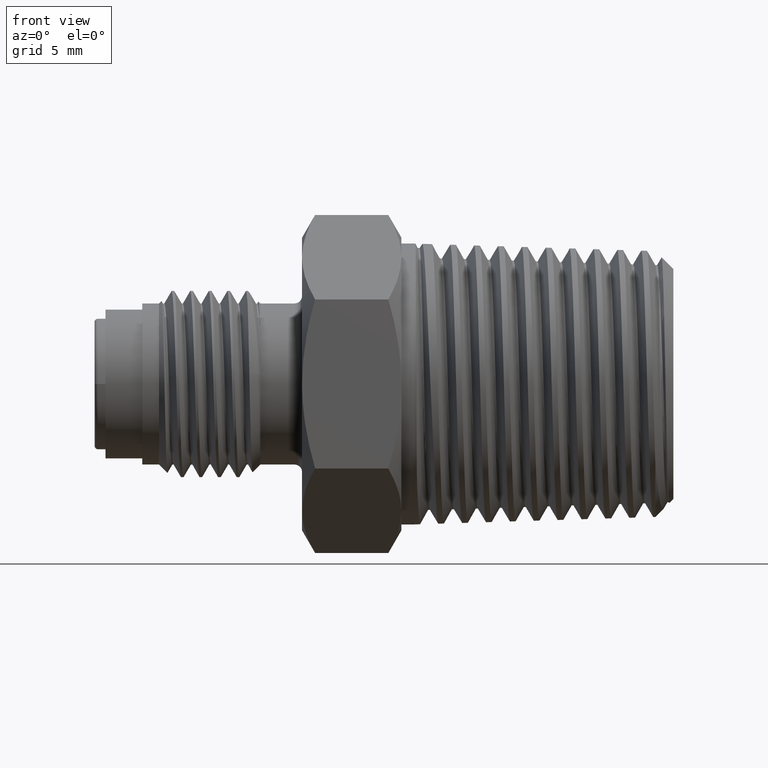
[diagram: clean part render]
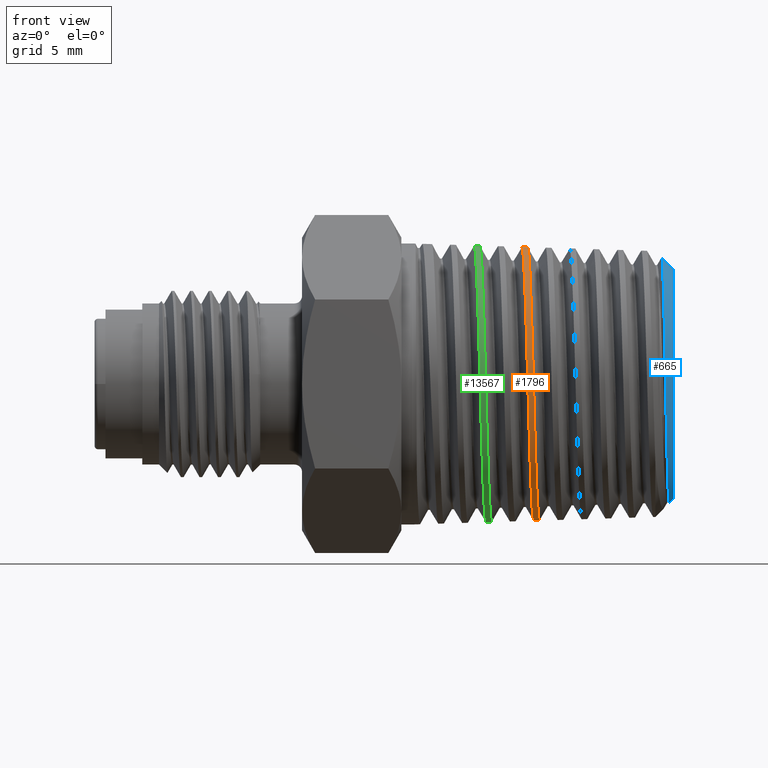
[diagram: same view with three faces highlighted in distinct colors, each labeled with its STEP entity id]
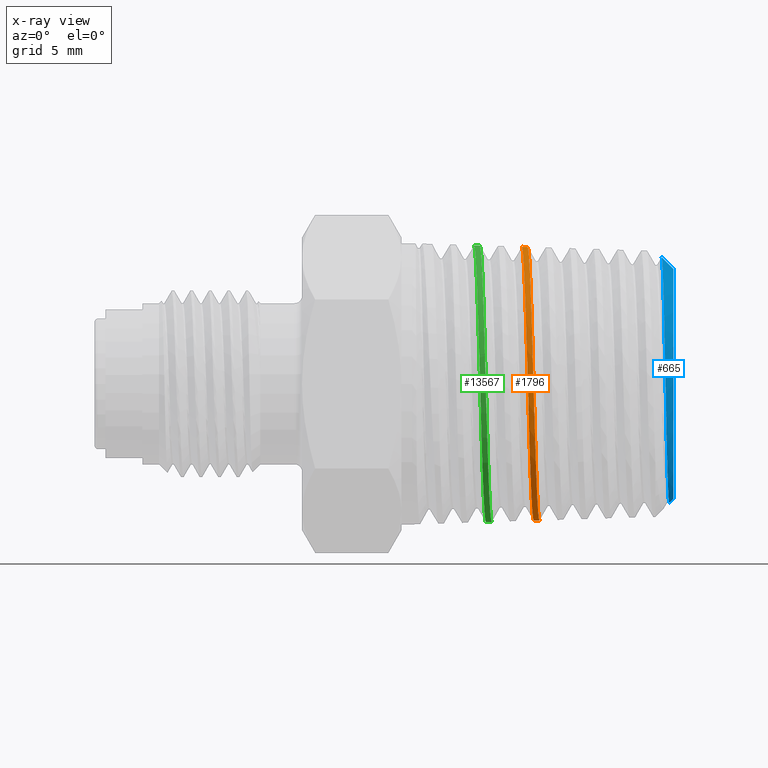
[diagram: x-ray of the same camera — body ghosted, the three highlighted faces saturated]
A machine part, front view with three faces highlighted in distinct colors.
The next image is the same camera in x-ray (body ghosted, the three faces saturated) — at least one of them is partly hidden behind the body in this view.
Their STEP definitions:

[orange] entity #1796 — the highlighted conical surface has half-angle 1.78 deg.
#23 = CARTESIAN_POINT ( 'NONE',  ( -0.4151173090203262861, -0.3950476412712667917, -0.1052743800152869252 ) ) ;
#57 = CARTESIAN_POINT ( 'NONE',  ( -0.4255306256190061198, -0.2700084132593077446, -0.3074180352616404099 ) ) ;
#73 = CARTESIAN_POINT ( 'NONE',  ( -0.4046868152834457444, -0.1565973228919637916, -0.3777680982628089379 ) ) ;
#118 = CARTESIAN_POINT ( 'NONE',  ( -0.4061828962581205404, -0.2043311961957050282, -0.3537887261836558661 ) ) ;
#279 = ORIENTED_EDGE ( 'NONE', *, *, #4064, .T. ) ;
#296 = CARTESIAN_POINT ( 'NONE',  ( -0.4002211051402025377, 6.658879484556641965E-16, -0.4081510494415526158 ) ) ;
#503 = FACE_OUTER_BOUND ( 'NONE', #10501, .T. ) ;
#960 = CARTESIAN_POINT ( 'NONE',  ( -0.4411578052216513224, -0.3545722755929949233, 0.2051525739494097778 ) ) ;
#1097 = CARTESIAN_POINT ( 'NONE',  ( -0.4292409293495632050, -0.3546346083792977777, -0.2043049888906049993 ) ) ;
#1163 = CARTESIAN_POINT ( 'NONE',  ( -0.4031810536658003152, -0.1059078955039125386, -0.3944929306354871268 ) ) ;
#1240 = CARTESIAN_POINT ( 'NONE',  ( -0.4459994229752201611, -0.2384228125006594146, 0.3332910966032992528 ) ) ;
#1377 = CARTESIAN_POINT ( 'NONE',  ( -0.4471260664241781257, -0.2051691929487861610, 0.3555221757829194473 ) ) ;
#1796 = ADVANCED_FACE ( 'NONE', ( #503 ), #5886, .T. ) ;
#1964 = EDGE_CURVE ( 'NONE', #7367, #9366, #4965, .T. ) ;
#2062 = CARTESIAN_POINT ( 'NONE',  ( -0.4206777071998516471, -0.3982452315875983917, 0.09319209145256880655 ) ) ;
#2104 = CARTESIAN_POINT ( 'NONE',  ( -0.4172980396386160029, -0.4087113025977454628, -0.02654738847807768323 ) ) ;
#2135 = CARTESIAN_POINT ( 'NONE',  ( -0.4370630915761624102, -0.4039766048999837156, 0.06713707568260877945 ) ) ;
#2152 = CARTESIAN_POINT ( 'NONE',  ( -0.4099007373253198971, -0.3078022568162522843, -0.2698189548644301383 ) ) ;
#2185 = CARTESIAN_POINT ( 'NONE',  ( -0.4303606442252431719, -0.3730636281242125096, -0.1683877789173131578 ) ) ;
#2201 = CARTESIAN_POINT ( 'NONE',  ( -0.4358929334185339677, -1.461965527859390815E-15, 0.4092596178288875897 ) ) ;
#2234 = CARTESIAN_POINT ( 'NONE',  ( -0.4337078395535592379, -0.4059832034005796952, -0.05286663802153284547 ) ) ;
#2252 = CARTESIAN_POINT ( 'NONE',  ( -0.4343857195080260691, -0.05318785439865186121, 0.4066322226016844121 ) ) ;
#2378 = CARTESIAN_POINT ( 'NONE',  ( -0.4526999193715248171, -0.01342217816118456558, 0.4097819261660839429 ) ) ;
#2759 = CARTESIAN_POINT ( 'NONE',  ( -0.05388810761671526672, 3.876692262546568186E-17, -0.3973881076167147808 ) ) ;
#2840 = AXIS2_PLACEMENT_3D ( 'NONE', #8187, #9241, #3931 ) ;
#3061 = EDGE_CURVE ( 'NONE', #7082, #7367, #7405, .T. ) ;
#3184 = CARTESIAN_POINT ( 'NONE',  ( -0.4259142553729520220, -0.2800625508126857177, -0.2983027516984012584 ) ) ;
#3200 = CARTESIAN_POINT ( 'NONE',  ( -0.4307009927408397276, -0.1806688393055386754, 0.3672862017101528043 ) ) ;
#3252 = CARTESIAN_POINT ( 'NONE',  ( -0.4054366547422275091, -0.1807133018582092465, -0.3663897709488710408 ) ) ;
#3280 = CARTESIAN_POINT ( 'NONE',  ( -0.4322321900415951879, -0.3961281799169543705, -0.1058631473780271143 ) ) ;
#3292 = CARTESIAN_POINT ( 'NONE',  ( -0.4232371862810164198, -0.3672424016114775869, 0.1817208599959760085 ) ) ;
#3323 = CARTESIAN_POINT ( 'NONE',  ( -0.4277797553652128437, -0.3254028222699940076, -0.2492297264315575522 ) ) ;
#3341 = CARTESIAN_POINT ( 'NONE',  ( -0.4239927632673083924, -0.3546800955063869609, 0.2051998295248471660 ) ) ;
#3547 = CARTESIAN_POINT ( 'NONE',  ( -0.4444764421855060266, -0.2799910798022030578, 0.2991596608506715271 ) ) ;
#3744 = CARTESIAN_POINT ( 'NONE',  ( -0.4002211051402025377, 6.658879484556641965E-16, -0.4081510494415526158 ) ) ;
#3863 = LINE ( 'NONE', #5707, #5555 ) ;
#3931 = DIRECTION ( 'NONE',  ( 3.007597545875435086E-16, 0.000000000000000000, 1.000000000000000000 ) ) ;
#4064 = EDGE_CURVE ( 'NONE', #9711, #9366, #3863, .T. ) ;
#4220 = CARTESIAN_POINT ( 'NONE',  ( -0.4332892803866721931, -0.09276110499395887055, 0.3987524209059265523 ) ) ;
#4247 = CARTESIAN_POINT ( 'NONE',  ( -0.4314861919916289645, -0.3883712389185611791, -0.1313843256302555940 ) ) ;
#4261 = CARTESIAN_POINT ( 'NONE',  ( -0.4128481999161832672, -0.3673071923359221835, -0.1808638676731896544 ) ) ;
#4291 = CARTESIAN_POINT ( 'NONE',  ( -0.4288724190660355151, -0.3476949987887125171, -0.2158747826922992608 ) ) ;
#4355 = CARTESIAN_POINT ( 'NONE',  ( -0.4321896561815514182, -0.1314745060069524019, 0.3876758956855913540 ) ) ;
#4470 = CARTESIAN_POINT ( 'NONE',  ( -0.4512003032306483030, -0.06690085532013725911, 0.4044563959714356782 ) ) ;
#4562 = CARTESIAN_POINT ( 'NONE',  ( -0.4493141594662464211, -0.1317422479803758428, 0.3888553786377791921 ) ) ;
#4965 = B_SPLINE_CURVE_WITH_KNOTS ( 'NONE', 3,
 ( #6362, #7536, #5377, #13926, #9663, #9571, #8594, #12944, #9712, #11842, #7488, #57, #3184, #6410, #3323, #4291, #1097, #10652, #2185, #4247, #3280, #7583, #2234, #11749, #5331, #12846, #8547, #2135, #9617, #5470, #6313, #7396, #960, #7806, #7722, #10982, #3547, #9845, #6683, #1240, #1377, #8874, #4562, #13177, #4470, #12074, #11983, #2378, #13086 ),
 .UNSPECIFIED., .F., .F.,
 ( 4, 2, 2, 2, 2, 2, 2, 2, 2, 2, 2, 2, 1, 2, 2, 2, 2, 2, 2, 2, 2, 2, 2, 2, 4 ),
 ( 0.3261832934883643897, 0.3271994410760920013, 0.3282155886638196129, 0.3302478838392748361, 0.3322801790147300038, 0.3332963266024576154, 0.3343124741901852270, 0.3363447693656404502, 0.3373609169533680618, 0.3383770645410956734, 0.3404093597165508966, 0.3414255073042785082, 0.3424416548920060643, 0.3434578024797336759, 0.3444739500674612875, 0.3465062452429165107, 0.3475223928306441223, 0.3485385404183717339, 0.3505708355938269571, 0.3515869831815545687, 0.3526031307692821803, 0.3546354259447373480, 0.3566677211201925712, 0.3576838687079201828, 0.3587000162956477944 ),
 .UNSPECIFIED. ) ;
#5331 = CARTESIAN_POINT ( 'NONE',  ( -0.4351876346310936672, -0.4098868202649014192, 0.0004489687830923733917 ) ) ;
#5377 = CARTESIAN_POINT ( 'NONE',  ( -0.4181132878668119557, -0.02696792992777736347, -0.4080375541647682236 ) ) ;
#5391 = VECTOR ( 'NONE', #8973, 39.37007874015748854 ) ;
#5397 = CARTESIAN_POINT ( 'NONE',  ( -0.4262505928936559663, -0.3072885957187448391, 0.2701915983652530828 ) ) ;
#5441 = CARTESIAN_POINT ( 'NONE',  ( -0.4143659948826278749, -0.3872698742701401464, -0.1309515099415327344 ) ) ;
#5470 = CARTESIAN_POINT ( 'NONE',  ( -0.4388991087519472645, -0.3883117458917903497, 0.1322733670263561145 ) ) ;
#5555 = VECTOR ( 'NONE', #6823, 39.37007874015748854 ) ;
#5707 = CARTESIAN_POINT ( 'NONE',  ( -0.05388810761671503080, -9.899084775737700313E-18, 0.3973881076167150583 ) ) ;
#5886 = CONICAL_SURFACE ( 'NONE', #2840, 0.3973881076167148918, 0.03106686068549926322 ) ;
#6313 = CARTESIAN_POINT ( 'NONE',  ( -0.4400199735455415651, -0.3729967605151558452, 0.1692629121529160841 ) ) ;
#6362 = CARTESIAN_POINT ( 'NONE',  ( -0.4173805624611712783, -8.290667781834677737E-13, -0.4086843114818780598 ) ) ;
#6380 = CARTESIAN_POINT ( 'NONE',  ( -0.4221415577307937594, -0.3826407419338633265, 0.1446005982832854753 ) ) ;
#6410 = CARTESIAN_POINT ( 'NONE',  ( -0.4270559744121703583, -0.3085014216741829296, -0.2698426215536361972 ) ) ;
#6424 = CARTESIAN_POINT ( 'NONE',  ( -0.4314533486925388739, -0.1565666675042784173, 0.3786796167374938960 ) ) ;
#6564 = CARTESIAN_POINT ( 'NONE',  ( -0.4195682529825223717, -0.4060440135173758458, 0.05400284817473446214 ) ) ;
#6683 = CARTESIAN_POINT ( 'NONE',  ( -0.4456192257804850732, -0.2491641349818758955, 0.3253288155686037131 ) ) ;
#6696 = CARTESIAN_POINT ( 'NONE',  ( -0.4028113820413107837, -0.09279532908062605723, -0.3977726849953986399 ) ) ;
#6823 = DIRECTION ( 'NONE',  ( -0.9995174638954169577, -1.836083794277095021E-16, 0.03106186356408789997 ) ) ;
#7082 = VERTEX_POINT ( 'NONE', #3744 ) ;
#7367 = VERTEX_POINT ( 'NONE', #13696 ) ;
#7396 = CARTESIAN_POINT ( 'NONE',  ( -0.4403976701116910641, -0.3672774002474654131, 0.1813754276370080909 ) ) ;
#7405 = LINE ( 'NONE', #2759, #5391 ) ;
#7460 = CARTESIAN_POINT ( 'NONE',  ( -0.4217751704634247756, -0.3872123526799930993, 0.1318381166497889223 ) ) ;
#7488 = CARTESIAN_POINT ( 'NONE',  ( -0.4247790064085354422, -0.2492371937213538891, -0.3244566373910084400 ) ) ;
#7536 = CARTESIAN_POINT ( 'NONE',  ( -0.4177455241160701327, -0.01341205629479883671, -0.4086956533438393935 ) ) ;
#7583 = CARTESIAN_POINT ( 'NONE',  ( -0.4333376124719356959, -0.4040019228339777890, -0.06627171796587046082 ) ) ;
#7599 = CARTESIAN_POINT ( 'NONE',  ( -0.4039310346803816065, -0.1315009551561040768, -0.3867398141813146450 ) ) ;
#7722 = CARTESIAN_POINT ( 'NONE',  ( -0.4426442187630512115, -0.3253147698905501373, 0.2501027812834848985 ) ) ;
#7777 = CARTESIAN_POINT ( 'NONE',  ( -0.4017072085441932283, -0.05319299969363776998, -0.4056104406747687574 ) ) ;
#7806 = CARTESIAN_POINT ( 'NONE',  ( -0.4415377560673523494, -0.3476211503061026886, 0.2167384625914776930 ) ) ;
#8187 = CARTESIAN_POINT ( 'NONE',  ( -0.05388810761671514876, -9.899084775737700313E-18, 1.198591983551632204E-16 ) ) ;
#8519 = CARTESIAN_POINT ( 'NONE',  ( -0.4188012055079914364, -0.4086984068610218235, 0.02744975718514625074 ) ) ;
#8547 = CARTESIAN_POINT ( 'NONE',  ( -0.4366884842940610967, -0.4059610652791116325, 0.05374485791712335647 ) ) ;
#8564 = CARTESIAN_POINT ( 'NONE',  ( -0.4329225685662143053, -0.1058805581035311971, 0.3954568138429749302 ) ) ;
#8594 = CARTESIAN_POINT ( 'NONE',  ( -0.4211041390130308981, -0.1317332353187808114, -0.3879365333853609932 ) ) ;
#8610 = CARTESIAN_POINT ( 'NONE',  ( -0.4295576909417417877, -0.2158788499176555742, 0.3477202774176272326 ) ) ;
#8658 = ORIENTED_EDGE ( 'NONE', *, *, #1964, .F. ) ;
#8874 = CARTESIAN_POINT ( 'NONE',  ( -0.4478349983029111803, -0.1816362618977995780, 0.3681509637322509243 ) ) ;
#8973 = DIRECTION ( 'NONE',  ( -0.9995174638954169577, -1.798043982487783698E-16, -0.03106186356408728935 ) ) ;
#9241 = DIRECTION ( 'NONE',  ( -1.000000000000000000, -1.836970198721021306E-16, 3.053134055134053237E-16 ) ) ;
#9366 = VERTEX_POINT ( 'NONE', #11262 ) ;
#9538 = CARTESIAN_POINT ( 'NONE',  ( -0.4154871841803190469, -0.3982821520397017978, -0.09232259867756230365 ) ) ;
#9571 = CARTESIAN_POINT ( 'NONE',  ( -0.4203337409509989020, -0.1061530642330468371, -0.3956518014588456533 ) ) ;
#9586 = CARTESIAN_POINT ( 'NONE',  ( -0.4165850258997766953, -0.4060649681861628335, -0.05313508760648447127 ) ) ;
#9617 = CARTESIAN_POINT ( 'NONE',  ( -0.4381720014689587939, -0.3960819141448851388, 0.1067504613263535324 ) ) ;
#9632 = CARTESIAN_POINT ( 'NONE',  ( -0.4076640810894440747, -0.2494724653300586792, -0.3244407925232800083 ) ) ;
#9663 = CARTESIAN_POINT ( 'NONE',  ( -0.4192170904417025223, -0.06692482261865570492, -0.4034455612203098340 ) ) ;
#9685 = CARTESIAN_POINT ( 'NONE',  ( -0.4255029801079732721, -0.3243880360349389869, 0.2493655557517978072 ) ) ;
#9711 = VERTEX_POINT ( 'NONE', #12886 ) ;
#9712 = CARTESIAN_POINT ( 'NONE',  ( -0.4233151625336624702, -0.2052392936973124749, -0.3546285848175370070 ) ) ;
#9725 = CARTESIAN_POINT ( 'NONE',  ( -0.4139831723461704360, -0.3827023022179728562, -0.1437190520059273557 ) ) ;
#9828 = B_SPLINE_CURVE_WITH_KNOTS ( 'NONE', 3,
 ( #2201, #10717, #2252, #4220, #8564, #4355, #6424, #3200, #11857, #8610, #12818, #13004, #11812, #5397, #9685, #12908, #3341, #3292, #6380, #7460, #10768, #2062, #6564, #8519, #2104, #9586, #9538, #23, #5441, #9725, #4261, #11764, #12863, #2152, #12963, #9632, #10814, #118, #3252, #73, #7599, #1163, #6696, #7777, #9907, #296 ),
 .UNSPECIFIED., .F., .F.,
 ( 4, 2, 2, 1, 2, 2, 2, 2, 2, 2, 2, 2, 2, 2, 2, 2, 2, 2, 2, 2, 1, 2, 2, 4 ),
 ( 0.3508915985693499828, 0.3529225975705073681, 0.3539380970710860885, 0.3549535965716647534, 0.3559690960722434738, 0.3569845955728221942, 0.3590155945739795795, 0.3600310940745582444, 0.3610465935751369648, 0.3630775925762943501, 0.3640930920768730705, 0.3651085915774517354, 0.3671395905786091207, 0.3691705895797665060, 0.3701860890803452264, 0.3712015885809238913, 0.3732325875820813321, 0.3752635865832387174, 0.3772945855843961027, 0.3783100850849747676, 0.3793255845855534880, 0.3803410840861321529, 0.3813565835867108733, 0.3833875825878682586 ),
 .UNSPECIFIED. ) ;
#9845 = CARTESIAN_POINT ( 'NONE',  ( -0.4448579812614698592, -0.2699438754271665242, 0.3082734678755493785 ) ) ;
#9907 = CARTESIAN_POINT ( 'NONE',  ( -0.4009748475236976639, -0.02666003470367707059, -0.4081744733875310449 ) ) ;
#10012 = ORIENTED_EDGE ( 'NONE', *, *, #3061, .F. ) ;
#10501 = EDGE_LOOP ( 'NONE', ( #10012, #11928, #279, #8658 ) ) ;
#10652 = CARTESIAN_POINT ( 'NONE',  ( -0.4299866881605030611, -0.3673447159500730641, -0.1805077683558163060 ) ) ;
#10717 = CARTESIAN_POINT ( 'NONE',  ( -0.4351349525256630879, -0.02666336185395930258, 0.4092360621633498452 ) ) ;
#10768 = CARTESIAN_POINT ( 'NONE',  ( -0.4210436925854528778, -0.3950048111736352285, 0.1061475768677916515 ) ) ;
#10814 = CARTESIAN_POINT ( 'NONE',  ( -0.4065562753110957273, -0.2159531710668891324, -0.3468325317491726678 ) ) ;
#10982 = CARTESIAN_POINT ( 'NONE',  ( -0.4433570791194375027, -0.3084107551757278021, 0.2707116753168833934 ) ) ;
#11262 = CARTESIAN_POINT ( 'NONE',  ( -0.4530636790355601629, -9.000062543845689587E-13, 0.4097932306740008634 ) ) ;
#11749 = CARTESIAN_POINT ( 'NONE',  ( -0.4344465616358256788, -0.4085941926608872010, -0.02620719120629625212 ) ) ;
#11764 = CARTESIAN_POINT ( 'NONE',  ( -0.4121257072442661151, -0.3547466435279175156, -0.2043472604246309166 ) ) ;
#11765 = EDGE_CURVE ( 'NONE', #9711, #7082, #9828, .T. ) ;
#11812 = CARTESIAN_POINT ( 'NONE',  ( -0.4266174901114819784, -0.2982909140444289786, 0.2801034019368653927 ) ) ;
#11842 = CARTESIAN_POINT ( 'NONE',  ( -0.4244098710663518625, -0.2384974029909860127, -0.3324126873204917287 ) ) ;
#11857 = CARTESIAN_POINT ( 'NONE',  ( -0.4299423048193632413, -0.2042687298115228867, 0.3546764425475662508 ) ) ;
#11928 = ORIENTED_EDGE ( 'NONE', *, *, #11765, .F. ) ;
#11983 = CARTESIAN_POINT ( 'NONE',  ( -0.4523314285093892329, -0.02697911557056325779, 0.4091015856932315731 ) ) ;
#12074 = CARTESIAN_POINT ( 'NONE',  ( -0.4515801459302529741, -0.05368957088628988766, 0.4064360667830548279 ) ) ;
#12818 = CARTESIAN_POINT ( 'NONE',  ( -0.4284240115046857311, -0.2494077663607741357, 0.3253033179052573498 ) ) ;
#12846 = CARTESIAN_POINT ( 'NONE',  ( -0.4359382687774327469, -0.4085822840720616522, 0.02709851602701950427 ) ) ;
#12863 = CARTESIAN_POINT ( 'NONE',  ( -0.4106585558583237816, -0.3250777201910631797, -0.2487774291701435048 ) ) ;
#12886 = CARTESIAN_POINT ( 'NONE',  ( -0.4358929334185339677, -1.461965527859390815E-15, 0.4092596178288875897 ) ) ;
#12908 = CARTESIAN_POINT ( 'NONE',  ( -0.4251252121022479624, -0.3324166754126312573, 0.2385315920400868095 ) ) ;
#12944 = CARTESIAN_POINT ( 'NONE',  ( -0.4226059700230813676, -0.1816924019193266182, -0.3672525448130582459 ) ) ;
#12963 = CARTESIAN_POINT ( 'NONE',  ( -0.4083974791737836063, -0.2700614682328572602, -0.3075274627517169401 ) ) ;
#13004 = CARTESIAN_POINT ( 'NONE',  ( -0.4277088157743872965, -0.2699955278200746323, 0.3083811963374153975 ) ) ;
#13086 = CARTESIAN_POINT ( 'NONE',  ( -0.4530636790355601629, -9.000062543845689587E-13, 0.4097932306740008634 ) ) ;
#13177 = CARTESIAN_POINT ( 'NONE',  ( -0.4500643474404105726, -0.1061122906736391702, 0.3966168838886282577 ) ) ;
#13696 = CARTESIAN_POINT ( 'NONE',  ( -0.4173805624611712783, -8.290667781834677737E-13, -0.4086843114818780598 ) ) ;
#13926 = CARTESIAN_POINT ( 'NONE',  ( -0.4188485369815475590, -0.05370431114283505392, -0.4054089782269740816 ) ) ;

[blue] entity #665 — the highlighted conical surface has half-angle 45 deg.
#114 = CARTESIAN_POINT ( 'NONE',  ( -0.03419360974519185942, -0.04783806250581935232, 0.3754185174036220318 ) ) ;
#293 = CARTESIAN_POINT ( 'NONE',  ( -0.02358777957136104497, -0.3672739134293080965, -0.002737659937162336809 ) ) ;
#493 = CARTESIAN_POINT ( 'NONE',  ( -1.390232547146580598E-16, 4.041677008808863499E-17, -0.3434999999999999720 ) ) ;
#665 = ADVANCED_FACE ( 'NONE', ( #13123 ), #4683, .T. ) ;
#834 = CARTESIAN_POINT ( 'NONE',  ( -0.03512519437966415969, -1.088470684975604861E-16, 0.3786251943796643538 ) ) ;
#1110 = CARTESIAN_POINT ( 'NONE',  ( -0.01211113930622502270, -3.628235616585349741E-17, -0.3556111393062247328 ) ) ;
#1297 = CARTESIAN_POINT ( 'NONE',  ( -0.01899119275345150654, -0.2923499103164680091, -0.2146538087162919439 ) ) ;
#1315 = AXIS2_PLACEMENT_3D ( 'NONE', #9939, #1337, #4383 ) ;
#1335 = DIRECTION ( 'NONE',  ( -0.7071067811865489050, -1.298934084353236847E-16, 0.7071067811865460184 ) ) ;
#1337 = DIRECTION ( 'NONE',  ( -1.000000000000000000, -1.836970198721021306E-16, 3.053134055134053237E-16 ) ) ;
#1375 = CARTESIAN_POINT ( 'NONE',  ( 7.072705487305145467E-17, -3.791200677927629740E-33, 0.3435000000000001941 ) ) ;
#1387 = CARTESIAN_POINT ( 'NONE',  ( -0.02429370478789626142, -0.3670703041803906053, 0.03329171816586384142 ) ) ;
#1910 = CARTESIAN_POINT ( 'NONE',  ( -0.01607700144644064882, -0.1847160451679542570, -0.3094369673651253261 ) ) ;
#2291 = CARTESIAN_POINT ( 'NONE',  ( -0.03279723390539178440, -0.1180783803798975407, 0.3580945321481132648 ) ) ;
#2342 = CARTESIAN_POINT ( 'NONE',  ( -0.03512519437966415969, -1.088470684975604861E-16, 0.3786251943796643538 ) ) ;
#2388 = CARTESIAN_POINT ( 'NONE',  ( -0.02475454984800988176, -0.3645968998341773126, 0.05708654945727791030 ) ) ;
#2475 = CARTESIAN_POINT ( 'NONE',  ( -0.01849258189419814014, -0.2770753932544420817, -0.2332653395469663216 ) ) ;
#2536 = VECTOR ( 'NONE', #1335, 39.37007874015748854 ) ;
#3180 = EDGE_LOOP ( 'NONE', ( #11944, #3995, #11049, #7719 ) ) ;
#3232 = CARTESIAN_POINT ( 'NONE',  ( 7.072705487305150398E-17, -4.949542387868817801E-18, 0.3435000000000002496 ) ) ;
#3237 = EDGE_CURVE ( 'NONE', #3277, #8589, #12956, .T. ) ;
#3242 = CARTESIAN_POINT ( 'NONE',  ( -0.01211113930622502270, -3.628235616585349741E-17, -0.3556111393062247328 ) ) ;
#3277 = VERTEX_POINT ( 'NONE', #3232 ) ;
#3423 = EDGE_CURVE ( 'NONE', #3277, #9002, #12446, .T. ) ;
#3428 = CARTESIAN_POINT ( 'NONE',  ( -0.01923992981405643274, -0.2994820882326992284, -0.2050214142092643410 ) ) ;
#3515 = CARTESIAN_POINT ( 'NONE',  ( -0.02644544553048674973, -0.3432164037529540912, 0.1385831109771513692 ) ) ;
#3557 = CARTESIAN_POINT ( 'NONE',  ( -0.02761580199319609366, -0.3180199537231628293, 0.1928132338990157513 ) ) ;
#3950 = EDGE_CURVE ( 'NONE', #7336, #9002, #7041, .T. ) ;
#3995 = ORIENTED_EDGE ( 'NONE', *, *, #3237, .F. ) ;
#4029 = CARTESIAN_POINT ( 'NONE',  ( -0.01456676493606821020, -0.1185803539847597177, -0.3387105415750105153 ) ) ;
#4078 = CARTESIAN_POINT ( 'NONE',  ( -0.01750409661862231334, -0.2432759768433249425, -0.2678089026922997884 ) ) ;
#4383 = DIRECTION ( 'NONE',  ( 3.053134055134053237E-16, 0.000000000000000000, 1.000000000000000000 ) ) ;
#4399 = CARTESIAN_POINT ( 'NONE',  ( -0.01972969881531517686, -0.3127497859596533591, -0.1851119398059835053 ) ) ;
#4437 = CARTESIAN_POINT ( 'NONE',  ( -0.02285675826322147719, -0.3644819036006793356, -0.03894051188005553943 ) ) ;
#4482 = CARTESIAN_POINT ( 'NONE',  ( -0.03327123482740284438, -0.09476093140823768635, 0.3654476841676525534 ) ) ;
#4528 = CARTESIAN_POINT ( 'NONE',  ( -0.02068073293829968823, -0.3352973701859064959, -0.1426520193521481905 ) ) ;
#4683 = CONICAL_SURFACE ( 'NONE', #1315, 0.3435000000000000275, 0.7853981633974459475 ) ;
#4730 = CARTESIAN_POINT ( 'NONE',  ( -1.390232547146580105E-16, 4.206661755071158813E-17, -0.3434999999999999165 ) ) ;
#5095 = CARTESIAN_POINT ( 'NONE',  ( -0.01556815175686542332, -0.1630529046892643941, -0.3208083712310065283 ) ) ;
#5344 = CARTESIAN_POINT ( 'NONE',  ( -0.01824152245424437435, -0.2688875118357977878, -0.2422842296147093011 ) ) ;
#5481 = CARTESIAN_POINT ( 'NONE',  ( -0.02903388688421468244, -0.2757481800422773577, 0.2516278410519126596 ) ) ;
#5530 = CARTESIAN_POINT ( 'NONE',  ( -0.02571421457266091087, -0.3544003049345348377, 0.1042356597554801034 ) ) ;
#6560 = CARTESIAN_POINT ( 'NONE',  ( -0.02260981688051546049, -0.3627610161203256856, -0.05083532838454456193 ) ) ;
#6644 = CARTESIAN_POINT ( 'NONE',  ( -0.02547055319570158335, -0.3574046847516837433, 0.09244322823527631461 ) ) ;
#7041 = B_SPLINE_CURVE_WITH_KNOTS ( 'NONE', 3,
 ( #1110, #10465, #10811, #13700, #8608, #8291, #4029, #5095, #1910, #9389, #4078, #5344, #2475, #1297, #3428, #4399, #10949, #13002, #4528, #9904, #11904, #6560, #4437, #13097, #293, #1387, #2388, #6644, #5530, #8837, #3515, #9949, #3557, #13047, #5481, #7774, #8792, #7734, #10904, #9860, #7814, #2291, #4482, #114, #7639, #2342 ),
 .UNSPECIFIED., .F., .F.,
 ( 4, 2, 2, 2, 2, 2, 2, 2, 2, 2, 2, 2, 2, 2, 2, 2, 2, 2, 2, 2, 2, 2, 4 ),
 ( 0.001417107997962201073, 0.002328821662134032081, 0.003240535326305863089, 0.005063962654649525538, 0.006887389982993189289, 0.008710817311336851304, 0.009622530975508681444, 0.01053424463968051158, 0.01144595830385234173, 0.01235767196802417187, 0.01418109929636783388, 0.01509281296053966576, 0.01600452662471149590, 0.01782795395305515618, 0.01873966761722698285, 0.01965138128139881646, 0.02147480860974248021, 0.02329823593808614396, 0.02420994960225797757, 0.02512166326642981118, 0.02694509059477347840, 0.02876851792311714562, 0.03059194525146081631 ),
 .UNSPECIFIED. ) ;
#7330 = AXIS2_PLACEMENT_3D ( 'NONE', #7391, #11649, #7343 ) ;
#7336 = VERTEX_POINT ( 'NONE', #3242 ) ;
#7343 = DIRECTION ( 'NONE',  ( -3.053134055134053237E-16, 0.000000000000000000, -1.000000000000000000 ) ) ;
#7391 = CARTESIAN_POINT ( 'NONE',  ( -3.414809992080329023E-17, -3.791200677927629740E-33, 1.034064367020310434E-16 ) ) ;
#7639 = CARTESIAN_POINT ( 'NONE',  ( -0.03465400410636681333, -0.02407213564392436667, 0.3781540041063669033 ) ) ;
#7719 = ORIENTED_EDGE ( 'NONE', *, *, #3950, .F. ) ;
#7734 = CARTESIAN_POINT ( 'NONE',  ( -0.03045449983030099408, -0.2229824567993893281, 0.3004424684545072277 ) ) ;
#7774 = CARTESIAN_POINT ( 'NONE',  ( -0.02974811654509642092, -0.2504107477099718482, 0.2770408760702980366 ) ) ;
#7814 = CARTESIAN_POINT ( 'NONE',  ( -0.03185421142103731645, -0.1622100645970761257, 0.3393424061292485416 ) ) ;
#8291 = CARTESIAN_POINT ( 'NONE',  ( -0.01407514431193268058, -0.09558284686578150113, -0.3454104905721055996 ) ) ;
#8363 = EDGE_CURVE ( 'NONE', #8589, #7336, #9599, .T. ) ;
#8589 = VERTEX_POINT ( 'NONE', #493 ) ;
#8608 = CARTESIAN_POINT ( 'NONE',  ( -0.01334204556327048957, -0.05991135985831561039, -0.3519843752034159112 ) ) ;
#8792 = CARTESIAN_POINT ( 'NONE',  ( -0.02998537134419538772, -0.2415505413398298662, 0.2851132117853276693 ) ) ;
#8837 = CARTESIAN_POINT ( 'NONE',  ( -0.02620091870528735295, -0.3473028487875529646, 0.1272989127032440326 ) ) ;
#8933 = VECTOR ( 'NONE', #8952, 39.37007874015748854 ) ;
#8952 = DIRECTION ( 'NONE',  ( -0.7071067811865493491, -4.329780281177457185E-17, -0.7071067811865455743 ) ) ;
#9002 = VERTEX_POINT ( 'NONE', #834 ) ;
#9389 = CARTESIAN_POINT ( 'NONE',  ( -0.01703268559334514959, -0.2247326387653454938, -0.2829393797266763766 ) ) ;
#9599 = LINE ( 'NONE', #4730, #8933 ) ;
#9860 = CARTESIAN_POINT ( 'NONE',  ( -0.03138900916615241371, -0.1832462770039146593, 0.3279379678549967925 ) ) ;
#9904 = CARTESIAN_POINT ( 'NONE',  ( -0.02139673688824782899, -0.3490555179990891266, -0.1090648856758779789 ) ) ;
#9939 = CARTESIAN_POINT ( 'NONE',  ( -3.414809992080329023E-17, -3.791200677927629740E-33, 1.034064367020310434E-16 ) ) ;
#9949 = CARTESIAN_POINT ( 'NONE',  ( -0.02715882920224206576, -0.3293614588001615440, 0.1717020100653172676 ) ) ;
#10465 = CARTESIAN_POINT ( 'NONE',  ( -0.01236174397809632931, -0.01196023176803675918, -0.3558617439780960567 ) ) ;
#10811 = CARTESIAN_POINT ( 'NONE',  ( -0.01261098181138223424, -0.02392644092555306842, -0.3555091674881570296 ) ) ;
#10904 = CARTESIAN_POINT ( 'NONE',  ( -0.03068932451743494258, -0.2132259073977509911, 0.3077296669123570916 ) ) ;
#10949 = CARTESIAN_POINT ( 'NONE',  ( -0.01996888701856504300, -0.3188837585305799860, -0.1748338147034825540 ) ) ;
#11049 = ORIENTED_EDGE ( 'NONE', *, *, #3423, .T. ) ;
#11649 = DIRECTION ( 'NONE',  ( 1.000000000000000000, 1.836970198721021306E-16, -3.053134055134053237E-16 ) ) ;
#11904 = CARTESIAN_POINT ( 'NONE',  ( -0.02187584599326587720, -0.3558921807483807487, -0.08610350844641009860 ) ) ;
#11944 = ORIENTED_EDGE ( 'NONE', *, *, #8363, .F. ) ;
#12446 = LINE ( 'NONE', #1375, #2536 ) ;
#12956 = CIRCLE ( 'NONE', #7330, 0.3435000000000000830 ) ;
#13002 = CARTESIAN_POINT ( 'NONE',  ( -0.02044344396260606989, -0.3301474415824712239, -0.1536280560566913866 ) ) ;
#13047 = CARTESIAN_POINT ( 'NONE',  ( -0.02855955446216885268, -0.2910333308267760155, 0.2330549464355692046 ) ) ;
#13097 = CARTESIAN_POINT ( 'NONE',  ( -0.02334832749227702328, -0.3667463959397789242, -0.01486350032068658317 ) ) ;
#13123 = FACE_OUTER_BOUND ( 'NONE', #3180, .T. ) ;
#13700 = CARTESIAN_POINT ( 'NONE',  ( -0.01310024914008910135, -0.04787115782334613184, -0.3535764433785794636 ) ) ;

[green] entity #13567 — the highlighted conical surface has half-angle 1.78 deg.
#66 = CARTESIAN_POINT ( 'NONE',  ( -0.5548783236352448078, -0.3579938740437071942, -0.2062929351198081462 ) ) ;
#107 = CARTESIAN_POINT ( 'NONE',  ( -0.5544994697024211439, -0.3510678085506656054, -0.2178451089479802039 ) ) ;
#127 = ORIENTED_EDGE ( 'NONE', *, *, #5388, .F. ) ;
#161 = CARTESIAN_POINT ( 'NONE',  ( -0.5533734951500435262, -0.3280997641429498901, -0.2510551256563552935 ) ) ;
#207 = CARTESIAN_POINT ( 'NONE',  ( -0.5429719767385962070, 3.569543569846468997E-16, -0.4125872981889862623 ) ) ;
#407 = CARTESIAN_POINT ( 'NONE',  ( -0.5753578998133608291, -0.4031084738813348611, -0.09352716488975297560 ) ) ;
#783 = CARTESIAN_POINT ( 'NONE',  ( -0.5600763267644163212, 1.212415482150650260E-12, -0.4131188476676551646 ) ) ;
#969 = CARTESIAN_POINT ( 'NONE',  ( -0.5772270310802870563, -0.05392883738896284140, 0.4110074407666416962 ) ) ;
#1040 = B_SPLINE_CURVE_WITH_KNOTS ( 'NONE', 3,
 ( #12717, #2007, #969, #12899, #1064, #8464, #3141, #6641, #2288, #9803, #6600, #12999, #2385, #3463, #9901, #10988, #6556, #3508, #1291, #8748, #1249, #11899, #5573, #6690, #9720, #11946, #6503, #11853, #9764, #66, #107, #1205, #161, #3424, #13045, #7636, #13091, #5435, #8648, #3381, #8830, #10807, #12954, #7592, #13139, #1155, #3332, #207 ),
 .UNSPECIFIED., .F., .F.,
 ( 4, 2, 2, 2, 2, 2, 2, 2, 2, 2, 2, 2, 2, 2, 2, 2, 2, 2, 2, 2, 2, 2, 2, 4 ),
 ( 0.2200360876438989532, 0.2220891338086347921, 0.2241421799733706033, 0.2261952261381064422, 0.2272217492204743616, 0.2282482723028422811, 0.2303013184675781200, 0.2323543646323139311, 0.2333808877146818506, 0.2344074107970497700, 0.2364604569617856089, 0.2374869800441535284, 0.2385135031265214201, 0.2405665492912572589, 0.2415930723736251784, 0.2426195954559930978, 0.2436461185383610173, 0.2446726416207289367, 0.2467256877854647479, 0.2477522108678326673, 0.2487787339502005868, 0.2508317801149363979, 0.2518583031973043451, 0.2528848262796722368 ),
 .UNSPECIFIED. ) ;
#1064 = CARTESIAN_POINT ( 'NONE',  ( -0.5749706661414076825, -0.1331735245969423997, 0.3924829851553595095 ) ) ;
#1155 = CARTESIAN_POINT ( 'NONE',  ( -0.5437302623999008544, -0.02693856556750424264, -0.4119537495933845994 ) ) ;
#1205 = CARTESIAN_POINT ( 'NONE',  ( -0.5537464475807963860, -0.3361207441477042090, -0.2402261777009080113 ) ) ;
#1249 = CARTESIAN_POINT ( 'NONE',  ( -0.5616096487467493459, -0.4131238666757211520, 0.02766741612657168045 ) ) ;
#1291 = CARTESIAN_POINT ( 'NONE',  ( -0.5634438998000564913, -0.4025556291417743959, 0.09426412208967943629 ) ) ;
#1410 = CARTESIAN_POINT ( 'NONE',  ( -0.5660552836382625186, -0.2071326861889213333, -0.3586806603042343444 ) ) ;
#1451 = CARTESIAN_POINT ( 'NONE',  ( -0.5630429360994172461, -0.1069180233103600580, -0.3993716813438397684 ) ) ;
#1537 = DIRECTION ( 'NONE',  ( 3.007597545875435086E-16, 0.000000000000000000, 1.000000000000000000 ) ) ;
#1545 = CARTESIAN_POINT ( 'NONE',  ( -0.5853687094682890057, -0.3284419927248698468, 0.2522422884868726345 ) ) ;
#1627 = CARTESIAN_POINT ( 'NONE',  ( -0.05388810761671514876, -9.899084775737700313E-18, 1.198591983551632204E-16 ) ) ;
#1891 = DIRECTION ( 'NONE',  ( -0.9995174638954169577, -1.836083794277095021E-16, 0.03106186356408789997 ) ) ;
#1988 = CARTESIAN_POINT ( 'NONE',  ( -0.05388810761671503080, -9.899084775737700313E-18, 0.3973881076167150583 ) ) ;
#2007 = CARTESIAN_POINT ( 'NONE',  ( -0.5779471035671341905, -0.02713578471442852288, 0.4136742152834120834 ) ) ;
#2288 = CARTESIAN_POINT ( 'NONE',  ( -0.5712745675139552226, -0.2516095138026603339, 0.3283763999993780658 ) ) ;
#2368 = CARTESIAN_POINT ( 'NONE',  ( -0.5783214541365971906, -0.4136778913323057028, 0.01375826318332451330 ) ) ;
#2385 = CARTESIAN_POINT ( 'NONE',  ( -0.5683059790174219694, -0.3282967815462508598, 0.2526717951102723791 ) ) ;
#2501 = CARTESIAN_POINT ( 'NONE',  ( -0.5675221031444402930, -0.2519844080532380182, -0.3279433663134428412 ) ) ;
#2577 = DIRECTION ( 'NONE',  ( -1.000000000000000000, -1.836970198721021306E-16, 3.053134055134053237E-16 ) ) ;
#2588 = CARTESIAN_POINT ( 'NONE',  ( -0.5920584169725240375, -0.1332386586003315443, 0.3930255124007953627 ) ) ;
#2634 = CARTESIAN_POINT ( 'NONE',  ( -0.5898257721866865255, -0.2071120826140678550, 0.3587785218807038601 ) ) ;
#3030 = CARTESIAN_POINT ( 'NONE',  ( -0.5429719767385962070, 3.569543569846468997E-16, -0.4125872981889862623 ) ) ;
#3141 = CARTESIAN_POINT ( 'NONE',  ( -0.5727734938837097944, -0.2067761669207261177, 0.3591269722498973693 ) ) ;
#3332 = CARTESIAN_POINT ( 'NONE',  ( -0.5433480649784664385, -0.01346087149659764941, -0.4125989858302899216 ) ) ;
#3381 = CARTESIAN_POINT ( 'NONE',  ( -0.5481668302737754406, -0.1828437119750551676, -0.3702909609151350256 ) ) ;
#3424 = CARTESIAN_POINT ( 'NONE',  ( -0.5526370737635301067, -0.3109453618551623055, -0.2719783343387814356 ) ) ;
#3450 = CARTESIAN_POINT ( 'NONE',  ( -0.5765024606054346412, -0.4110359873485743276, -0.05361490033504351382 ) ) ;
#3463 = CARTESIAN_POINT ( 'NONE',  ( -0.5668157285909563026, -0.3585985802621782237, 0.2073417095941710864 ) ) ;
#3489 = CARTESIAN_POINT ( 'NONE',  ( -0.5831845093815120062, -0.3711582220907217455, 0.1835377663434343831 ) ) ;
#3508 = CARTESIAN_POINT ( 'NONE',  ( -0.5638072723853709833, -0.3992254793488653752, 0.1075470537666837895 ) ) ;
#3544 = CARTESIAN_POINT ( 'NONE',  ( -0.5957555899095653418, 1.814117808292674439E-16, 0.4142276471073000343 ) ) ;
#3579 = CARTESIAN_POINT ( 'NONE',  ( -0.5686309197645633695, -0.2830011015417226439, -0.3016272364765018033 ) ) ;
#3621 = CARTESIAN_POINT ( 'NONE',  ( -0.5738402538035413114, -0.3873263199026694692, -0.1455360861050426780 ) ) ;
#3758 = CARTESIAN_POINT ( 'NONE',  ( -0.5894641308002058766, -0.2187168659235648183, 0.3518060742244161765 ) ) ;
#4509 = CARTESIAN_POINT ( 'NONE',  ( -0.5809306438860856181, -0.4004300740930459845, 0.1076458234948892145 ) ) ;
#4552 = CARTESIAN_POINT ( 'NONE',  ( -0.5846336164697101268, -0.3444988276688073503, 0.2305702288246599674 ) ) ;
#4776 = B_SPLINE_CURVE_WITH_KNOTS ( 'NONE', 3,
 ( #5689, #11060, #8863, #7883, #1451, #13167, #6761, #7839, #1410, #6671, #2501, #9971, #3579, #5733, #13251, #13121, #7929, #3621, #11104, #12198, #407, #3450, #8774, #2368, #9834, #10927, #8813, #4509, #9885, #12016, #3489, #10972, #4552, #1545, #10149, #11331, #12445, #13430, #3758, #2634, #5960, #5816, #2588, #8069, #11286, #4917, #6894, #8024, #13521 ),
 .UNSPECIFIED., .F., .F.,
 ( 4, 2, 2, 2, 2, 2, 2, 2, 2, 2, 2, 2, 2, 2, 2, 2, 1, 2, 2, 2, 2, 2, 2, 2, 4 ),
 ( 0.4568023524688478165, 0.4588572693222879306, 0.4598847277490079599, 0.4609121861757279892, 0.4629671030291681033, 0.4639945614558881881, 0.4650220198826082174, 0.4670769367360483315, 0.4691318535894883901, 0.4701593120162084749, 0.4711867704429285042, 0.4732416872963686183, 0.4742691457230886476, 0.4752966041498086769, 0.4773515210032487910, 0.4783789794299688203, 0.4794064378566888496, 0.4804338962834089344, 0.4814613547101289637, 0.4835162715635690223, 0.4845437299902891071, 0.4855711884170091364, 0.4876261052704492505, 0.4886535636971692798, 0.4896810221238893091 ),
 .UNSPECIFIED. ) ;
#4917 = CARTESIAN_POINT ( 'NONE',  ( -0.5942912165028224614, -0.05404947811744566233, 0.4108653893009033831 ) ) ;
#4998 = CARTESIAN_POINT ( 'NONE',  ( -0.05388810761671526672, 3.876692262546568186E-17, -0.3973881076167147808 ) ) ;
#5388 = EDGE_CURVE ( 'NONE', #11746, #7993, #1040, .T. ) ;
#5435 = CARTESIAN_POINT ( 'NONE',  ( -0.5493132016855840627, -0.2184873278107857530, -0.3504795997836677723 ) ) ;
#5573 = CARTESIAN_POINT ( 'NONE',  ( -0.5600856896038061139, -0.4124924558261727214, -0.02650495133092618458 ) ) ;
#5689 = CARTESIAN_POINT ( 'NONE',  ( -0.5600763267644163212, 1.212415482150650260E-12, -0.4131188476676551646 ) ) ;
#5719 = AXIS2_PLACEMENT_3D ( 'NONE', #1627, #2577, #1537 ) ;
#5733 = CARTESIAN_POINT ( 'NONE',  ( -0.5697528410572424429, -0.3115993625894551977, -0.2730355159025945611 ) ) ;
#5816 = CARTESIAN_POINT ( 'NONE',  ( -0.5909357428466841533, -0.1707343833041738701, 0.3774828492723918960 ) ) ;
#5960 = CARTESIAN_POINT ( 'NONE',  ( -0.5905623848675445320, -0.1830946589046809347, 0.3716352313353262771 ) ) ;
#6089 = DIRECTION ( 'NONE',  ( -0.9995174638954169577, -1.798043982487783698E-16, -0.03106186356408728935 ) ) ;
#6111 = VECTOR ( 'NONE', #1891, 39.37007874015748854 ) ;
#6175 = FACE_OUTER_BOUND ( 'NONE', #13911, .T. ) ;
#6463 = EDGE_CURVE ( 'NONE', #8990, #9910, #4776, .T. ) ;
#6503 = CARTESIAN_POINT ( 'NONE',  ( -0.5571385813324531977, -0.3921756615823829284, -0.1324008003286437640 ) ) ;
#6556 = CARTESIAN_POINT ( 'NONE',  ( -0.5645493925682681935, -0.3913266391830005908, 0.1335285542732523034 ) ) ;
#6600 = CARTESIAN_POINT ( 'NONE',  ( -0.5701406131878560268, -0.2825423526785749151, 0.3021202749885312233 ) ) ;
#6641 = CARTESIAN_POINT ( 'NONE',  ( -0.5716548244763410835, -0.2406004603828135746, 0.3365409793932863103 ) ) ;
#6671 = CARTESIAN_POINT ( 'NONE',  ( -0.5671532901523527181, -0.2409616272364007994, -0.3361103928191815360 ) ) ;
#6690 = CARTESIAN_POINT ( 'NONE',  ( -0.5593229654034737042, -0.4098310624829186177, -0.05358595859568662106 ) ) ;
#6761 = CARTESIAN_POINT ( 'NONE',  ( -0.5641671782720864003, -0.1458704280314548907, -0.3868810375253179390 ) ) ;
#6894 = CARTESIAN_POINT ( 'NONE',  ( -0.5950225613676508596, -0.02698875652236261760, 0.4135482423245843697 ) ) ;
#7433 = LINE ( 'NONE', #4998, #11268 ) ;
#7592 = CARTESIAN_POINT ( 'NONE',  ( -0.5448672225631466803, -0.06748766046134754837, -0.4073153873362359567 ) ) ;
#7636 = CARTESIAN_POINT ( 'NONE',  ( -0.5511703547023876215, -0.2729405907789215213, -0.3109339235459512296 ) ) ;
#7798 = EDGE_CURVE ( 'NONE', #11746, #9910, #12315, .T. ) ;
#7839 = CARTESIAN_POINT ( 'NONE',  ( -0.5652967359825418203, -0.1833567288031219822, -0.3713665081188368133 ) ) ;
#7883 = CARTESIAN_POINT ( 'NONE',  ( -0.5626755286368763098, -0.09377371064900053010, -0.4026443827730407099 ) ) ;
#7929 = CARTESIAN_POINT ( 'NONE',  ( -0.5727364121922704499, -0.3718474457860560523, -0.1828892777178829920 ) ) ;
#7993 = VERTEX_POINT ( 'NONE', #3030 ) ;
#8017 = CONICAL_SURFACE ( 'NONE', #5719, 0.3973881076167148918, 0.03106686068549926322 ) ;
#8024 = CARTESIAN_POINT ( 'NONE',  ( -0.5953874545164161702, -0.01348254982066562913, 0.4142162066154945754 ) ) ;
#8069 = CARTESIAN_POINT ( 'NONE',  ( -0.5928229851807871320, -0.1074587588872681632, 0.4008687105529707417 ) ) ;
#8464 = CARTESIAN_POINT ( 'NONE',  ( -0.5734919909530404869, -0.1830283070780234222, 0.3718073586083904258 ) ) ;
#8648 = CARTESIAN_POINT ( 'NONE',  ( -0.5489330812747120758, -0.2068808442642895151, -0.3574453704980951052 ) ) ;
#8748 = CARTESIAN_POINT ( 'NONE',  ( -0.5623481113873013415, -0.4104790052555112312, 0.05445084886501923294 ) ) ;
#8774 = CARTESIAN_POINT ( 'NONE',  ( -0.5772323121056601725, -0.4136677057212023723, -0.02679238284685355950 ) ) ;
#8813 = CARTESIAN_POINT ( 'NONE',  ( -0.5798045269968181703, -0.4083400587461077924, 0.06793166407550754737 ) ) ;
#8817 = ORIENTED_EDGE ( 'NONE', *, *, #7798, .T. ) ;
#8830 = CARTESIAN_POINT ( 'NONE',  ( -0.5477893664981656752, -0.1705359139328830043, -0.3761005242406018634 ) ) ;
#8863 = CARTESIAN_POINT ( 'NONE',  ( -0.5615763674272868933, -0.05406241327035454791, -0.4105012480533579144 ) ) ;
#8876 = EDGE_CURVE ( 'NONE', #7993, #8990, #7433, .T. ) ;
#8990 = VERTEX_POINT ( 'NONE', #783 ) ;
#9720 = CARTESIAN_POINT ( 'NONE',  ( -0.5589491218014692731, -0.4078430434228541568, -0.06696143963871420413 ) ) ;
#9764 = CARTESIAN_POINT ( 'NONE',  ( -0.5556351047883837380, -0.3707367585242555275, -0.1824556645879881200 ) ) ;
#9803 = CARTESIAN_POINT ( 'NONE',  ( -0.5705183074815297628, -0.2725526469202200208, 0.3111816639382767313 ) ) ;
#9834 = CARTESIAN_POINT ( 'NONE',  ( -0.5786880969517846918, -0.4130165202477339426, 0.02736703146367019598 ) ) ;
#9885 = CARTESIAN_POINT ( 'NONE',  ( -0.5816947597649739787, -0.3926220296341931815, 0.1334550872447538561 ) ) ;
#9901 = CARTESIAN_POINT ( 'NONE',  ( -0.5660620797738230570, -0.3712882982369671292, 0.1835514301079702593 ) ) ;
#9910 = VERTEX_POINT ( 'NONE', #3544 ) ;
#9971 = CARTESIAN_POINT ( 'NONE',  ( -0.5682605165065818253, -0.2729892192306307419, -0.3107070177625945173 ) ) ;
#10149 = CARTESIAN_POINT ( 'NONE',  ( -0.5861157050691965242, -0.3112842517419918686, 0.2731696301688376627 ) ) ;
#10320 = ORIENTED_EDGE ( 'NONE', *, *, #6463, .F. ) ;
#10363 = ORIENTED_EDGE ( 'NONE', *, *, #8876, .F. ) ;
#10807 = CARTESIAN_POINT ( 'NONE',  ( -0.5466902639064760150, -0.1331089415174555035, -0.3915797650050018008 ) ) ;
#10927 = CARTESIAN_POINT ( 'NONE',  ( -0.5794316010049466170, -0.4103384746281226181, 0.05452572576134251392 ) ) ;
#10972 = CARTESIAN_POINT ( 'NONE',  ( -0.5839116645128149541, -0.3583811574327093186, 0.2074275476727754364 ) ) ;
#10988 = CARTESIAN_POINT ( 'NONE',  ( -0.5649273527153836350, -0.3867650232318493586, 0.1462391360098511672 ) ) ;
#11060 = CARTESIAN_POINT ( 'NONE',  ( -0.5608328660357237982, -0.02722006229079819081, -0.4131423585322026026 ) ) ;
#11104 = CARTESIAN_POINT ( 'NONE',  ( -0.5742132368099034379, -0.3918850699154370898, -0.1328185113198803446 ) ) ;
#11268 = VECTOR ( 'NONE', #6089, 39.37007874015748854 ) ;
#11286 = CARTESIAN_POINT ( 'NONE',  ( -0.5939245774689144719, -0.06760788954789918870, 0.4088399366988928474 ) ) ;
#11331 = CARTESIAN_POINT ( 'NONE',  ( -0.5864970928827157870, -0.3021057700144809122, 0.2833087393573741064 ) ) ;
#11713 = CARTESIAN_POINT ( 'NONE',  ( -0.5786846522405687532, 2.999697152418064106E-15, 0.4136971359797417813 ) ) ;
#11746 = VERTEX_POINT ( 'NONE', #11713 ) ;
#11853 = CARTESIAN_POINT ( 'NONE',  ( -0.5560149163525388571, -0.3765792246153100709, -0.1701058265785721779 ) ) ;
#11899 = CARTESIAN_POINT ( 'NONE',  ( -0.5604712335568838855, -0.4131516829265962087, -0.01286756494943690557 ) ) ;
#11946 = CARTESIAN_POINT ( 'NONE',  ( -0.5578583297167615251, -0.3999640834672992251, -0.1066073914745117174 ) ) ;
#12016 = CARTESIAN_POINT ( 'NONE',  ( -0.5828162029228153296, -0.3770213336899956857, 0.1711472532944680602 ) ) ;
#12198 = CARTESIAN_POINT ( 'NONE',  ( -0.5749713636403791517, -0.3997744879248552596, -0.1068387165723558435 ) ) ;
#12315 = LINE ( 'NONE', #1988, #6111 ) ;
#12445 = CARTESIAN_POINT ( 'NONE',  ( -0.5876429004330574468, -0.2732176743279510212, 0.3122014700484702643 ) ) ;
#12717 = CARTESIAN_POINT ( 'NONE',  ( -0.5786846522405687532, 2.999697152418064106E-15, 0.4136971359797417813 ) ) ;
#12899 = CARTESIAN_POINT ( 'NONE',  ( -0.5757421824015650502, -0.1068391929231765486, 0.4004780261052160450 ) ) ;
#12954 = CARTESIAN_POINT ( 'NONE',  ( -0.5459788261067746173, -0.1073497063703563875, -0.3993939627535152415 ) ) ;
#12999 = CARTESIAN_POINT ( 'NONE',  ( -0.5690211398698808987, -0.3110949821662902792, 0.2735715899850917343 ) ) ;
#13045 = CARTESIAN_POINT ( 'NONE',  ( -0.5522693462739569625, -0.3017558018174233969, -0.2821253103965584152 ) ) ;
#13091 = CARTESIAN_POINT ( 'NONE',  ( -0.5504400689874513475, -0.2521099553714354347, -0.3280050904847458537 ) ) ;
#13121 = CARTESIAN_POINT ( 'NONE',  ( -0.5720309768537048534, -0.3591283739179746970, -0.2067548717030329164 ) ) ;
#13139 = CARTESIAN_POINT ( 'NONE',  ( -0.5444882223291790391, -0.05392888165477648793, -0.4093197924686240441 ) ) ;
#13167 = CARTESIAN_POINT ( 'NONE',  ( -0.5637900925884534731, -0.1330150669080046311, -0.3914784604622162933 ) ) ;
#13251 = CARTESIAN_POINT ( 'NONE',  ( -0.5705189470397821205, -0.3287625218908072910, -0.2521846807854518091 ) ) ;
#13430 = CARTESIAN_POINT ( 'NONE',  ( -0.5883809332371398026, -0.2523533438289026209, 0.3293029482761012927 ) ) ;
#13521 = CARTESIAN_POINT ( 'NONE',  ( -0.5957555899095653418, 1.814117808292674439E-16, 0.4142276471073000343 ) ) ;
#13567 = ADVANCED_FACE ( 'NONE', ( #6175 ), #8017, .T. ) ;
#13911 = EDGE_LOOP ( 'NONE', ( #10363, #127, #8817, #10320 ) ) ;